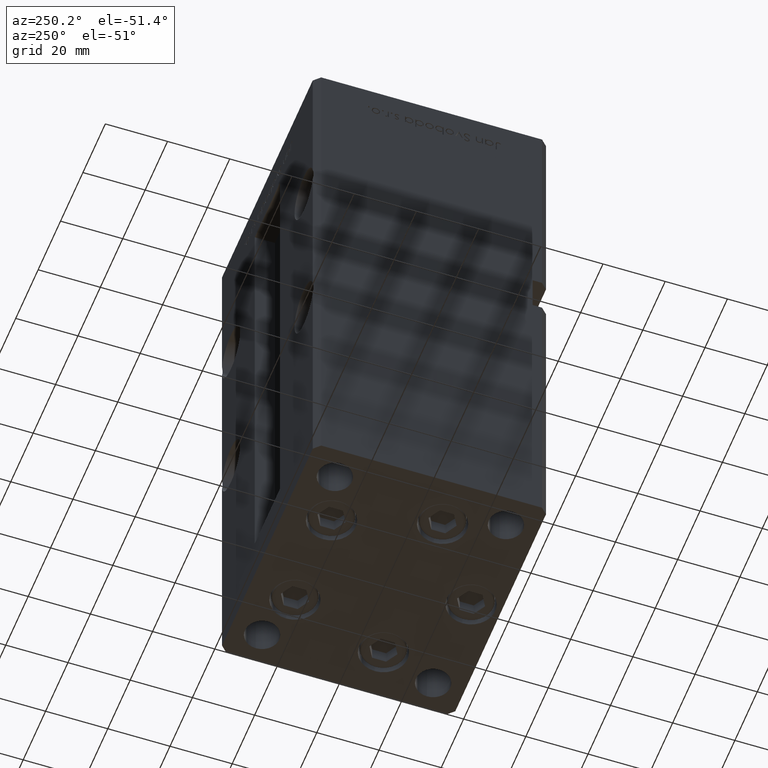
[diagram: clean part render]
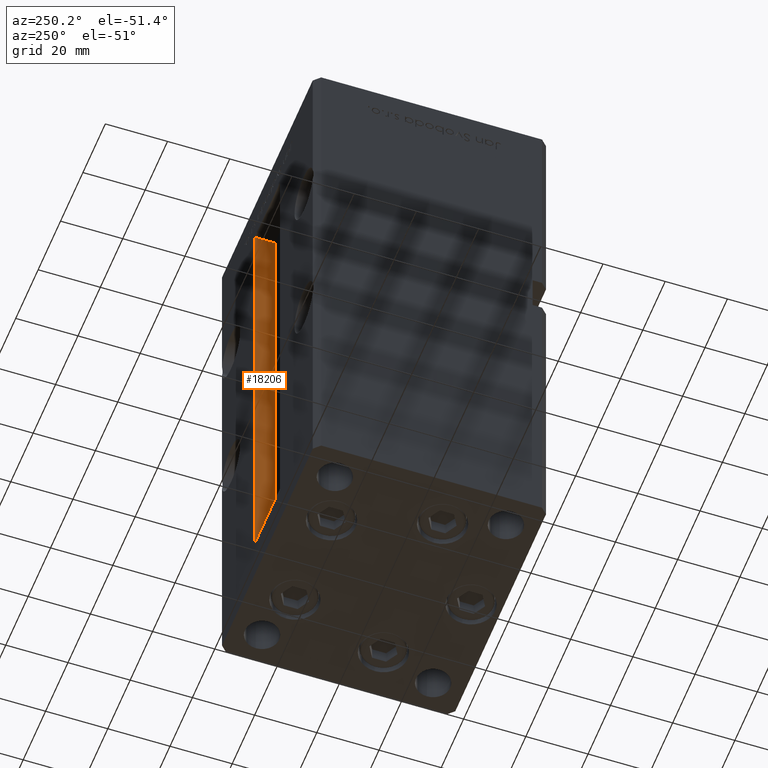
[diagram: same view with one face highlighted and labeled with its STEP entity id]
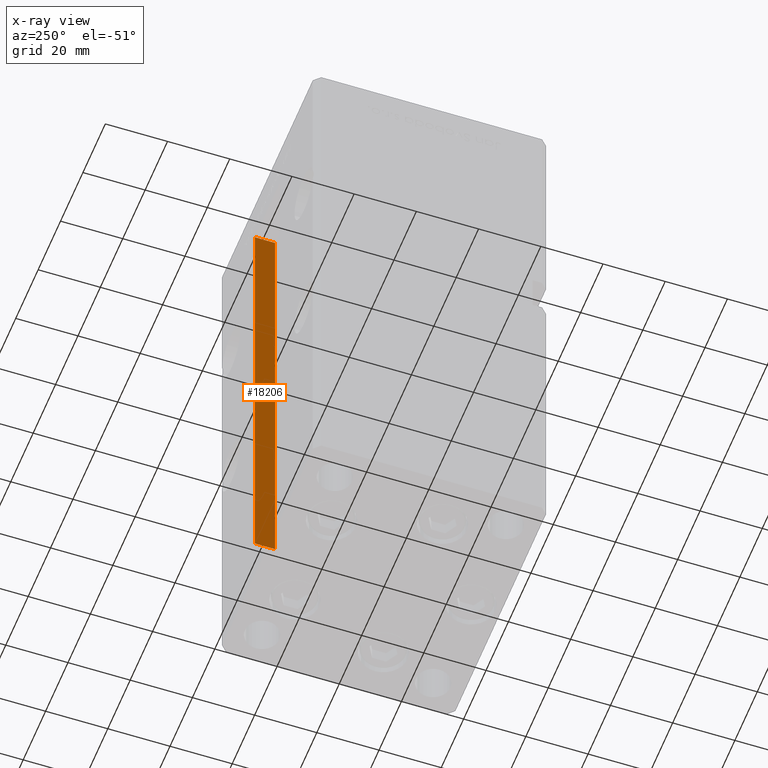
[diagram: x-ray of the same camera — body ghosted, the highlighted face saturated]
A machine part, auxiliary view. The second image highlights one B-rep face of the part: STEP entity #18206.
The next image is the same camera in x-ray: the body ghosted, the highlighted face saturated — about 2% of this face is hidden behind the body in this view.
In plain terms, the highlighted planar face has unit normal (1, 0, 0).
Its self-contained STEP definition (entity closure, byte-faithful):
#3936 = EDGE_LOOP ( 'NONE', ( #4496, #22151, #48916, #35711 ) ) ;
#4496 = ORIENTED_EDGE ( 'NONE', *, *, #35712, .F. ) ;
#5308 = VECTOR ( 'NONE', #16431, 1000.000000000000000 ) ;
#5767 = CARTESIAN_POINT ( 'NONE',  ( 11.24999999999999822, 0.000000000000000000, 148.5000000000000000 ) ) ;
#7085 = EDGE_CURVE ( 'NONE', #52546, #9583, #42627, .T. ) ;
#9583 = VERTEX_POINT ( 'NONE', #19019 ) ;
#10371 = VERTEX_POINT ( 'NONE', #33985 ) ;
#15536 = DIRECTION ( 'NONE',  ( 0.000000000000000000, 0.000000000000000000, -1.000000000000000000 ) ) ;
#16431 = DIRECTION ( 'NONE',  ( -0.000000000000000000, -0.000000000000000000, 1.000000000000000000 ) ) ;
#17289 = DIRECTION ( 'NONE',  ( 0.000000000000000000, 1.000000000000000000, 0.000000000000000000 ) ) ;
#18206 = ADVANCED_FACE ( 'NONE', ( #43794 ), #32492, .F. ) ;
#19019 = CARTESIAN_POINT ( 'NONE',  ( 11.24999999999999822, 31.00000000000000000, 148.5000000000000000 ) ) ;
#20040 = VECTOR ( 'NONE', #34290, 1000.000000000000000 ) ;
#22028 = LINE ( 'NONE', #52321, #27806 ) ;
#22151 = ORIENTED_EDGE ( 'NONE', *, *, #30989, .F. ) ;
#23614 = DIRECTION ( 'NONE',  ( 1.000000000000000000, -0.000000000000000000, 0.000000000000000000 ) ) ;
#27806 = VECTOR ( 'NONE', #43730, 1000.000000000000000 ) ;
#28534 = CARTESIAN_POINT ( 'NONE',  ( 11.24999999999999822, 37.50000000000000000, 0.000000000000000000 ) ) ;
#29543 = VERTEX_POINT ( 'NONE', #45376 ) ;
#30989 = EDGE_CURVE ( 'NONE', #29543, #10371, #46322, .T. ) ;
#31960 = CARTESIAN_POINT ( 'NONE',  ( 11.24999999999999822, 31.00000000000000000, 0.000000000000000000 ) ) ;
#32451 = AXIS2_PLACEMENT_3D ( 'NONE', #31960, #23614, #15536 ) ;
#32492 = PLANE ( 'NONE',  #32451 ) ;
#33985 = CARTESIAN_POINT ( 'NONE',  ( 11.24999999999999822, 37.50000000000000000, 0.000000000000000000 ) ) ;
#34290 = DIRECTION ( 'NONE',  ( -0.000000000000000000, -1.000000000000000000, 0.000000000000000000 ) ) ;
#35711 = ORIENTED_EDGE ( 'NONE', *, *, #7085, .F. ) ;
#35712 = EDGE_CURVE ( 'NONE', #10371, #52546, #46002, .T. ) ;
#42020 = CARTESIAN_POINT ( 'NONE',  ( 11.24999999999999822, 31.00000000000000000, 0.000000000000000000 ) ) ;
#42627 = LINE ( 'NONE', #5767, #20040 ) ;
#43730 = DIRECTION ( 'NONE',  ( -0.000000000000000000, -0.000000000000000000, 1.000000000000000000 ) ) ;
#43794 = FACE_OUTER_BOUND ( 'NONE', #3936, .T. ) ;
#44674 = CARTESIAN_POINT ( 'NONE',  ( 11.24999999999999112, 37.50000000000000000, 148.5000000000000000 ) ) ;
#45376 = CARTESIAN_POINT ( 'NONE',  ( 11.24999999999999822, 31.00000000000000000, 0.000000000000000000 ) ) ;
#46002 = LINE ( 'NONE', #28534, #5308 ) ;
#46322 = LINE ( 'NONE', #42020, #48095 ) ;
#46762 = EDGE_CURVE ( 'NONE', #29543, #9583, #22028, .T. ) ;
#48095 = VECTOR ( 'NONE', #17289, 1000.000000000000000 ) ;
#48916 = ORIENTED_EDGE ( 'NONE', *, *, #46762, .T. ) ;
#52321 = CARTESIAN_POINT ( 'NONE',  ( 11.24999999999999822, 31.00000000000000000, 0.000000000000000000 ) ) ;
#52546 = VERTEX_POINT ( 'NONE', #44674 ) ;